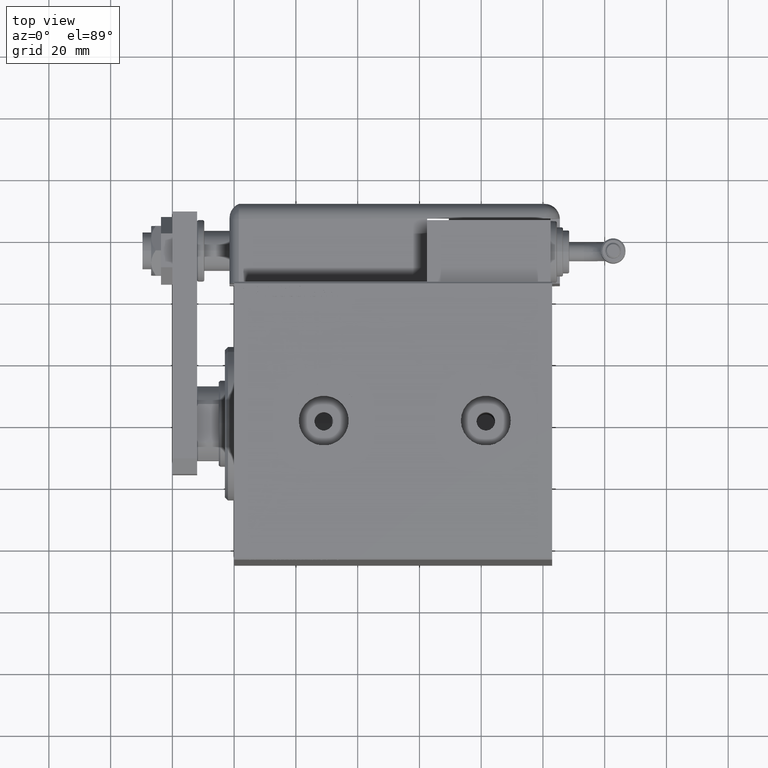
[diagram: clean part render]
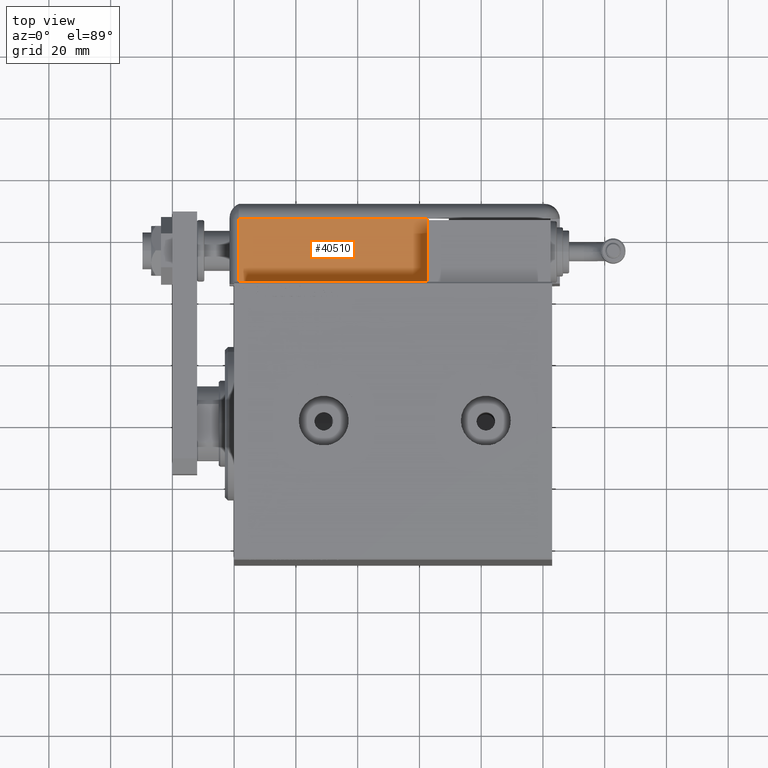
[diagram: same view with one face highlighted and labeled with its STEP entity id]
A machine part, top view. The second image highlights one B-rep face of the part: STEP entity #40510.
In plain terms, the highlighted planar face has unit normal (-0, -0, -1).
Its self-contained STEP definition (entity closure, byte-faithful):
#1228 = CARTESIAN_POINT ( 'NONE',  ( 28.99999999999999645, 20.79999999999998650, 43.00000000000000000 ) ) ;
#2502 = LINE ( 'NONE', #50874, #27167 ) ;
#2965 = DIRECTION ( 'NONE',  ( -0.000000000000000000, -0.000000000000000000, 1.000000000000000000 ) ) ;
#3979 = CARTESIAN_POINT ( 'NONE',  ( 28.99999999999999645, 25.79999999999998295, 104.0000000000000000 ) ) ;
#4887 = EDGE_CURVE ( 'NONE', #36231, #31035, #55074, .T. ) ;
#11099 = FACE_OUTER_BOUND ( 'NONE', #42825, .T. ) ;
#11783 = DIRECTION ( 'NONE',  ( -0.000000000000000000, -0.000000000000000000, -1.000000000000000000 ) ) ;
#12670 = DIRECTION ( 'NONE',  ( -0.000000000000000000, 1.000000000000000000, -0.000000000000000000 ) ) ;
#16040 = CARTESIAN_POINT ( 'NONE',  ( 28.99999999999999645, 25.79999999999998295, 104.0000000000000000 ) ) ;
#16204 = ORIENTED_EDGE ( 'NONE', *, *, #54683, .T. ) ;
#18290 = CARTESIAN_POINT ( 'NONE',  ( 28.99999999999999645, 20.79999999999998650, 104.0000000000000000 ) ) ;
#19819 = ORIENTED_EDGE ( 'NONE', *, *, #25583, .F. ) ;
#21960 = LINE ( 'NONE', #3979, #52962 ) ;
#25049 = DIRECTION ( 'NONE',  ( -1.000000000000000000, 0.000000000000000000, 0.000000000000000000 ) ) ;
#25583 = EDGE_CURVE ( 'NONE', #34413, #31035, #21960, .T. ) ;
#27167 = VECTOR ( 'NONE', #60179, 1000.000000000000000 ) ;
#27598 = VECTOR ( 'NONE', #11783, 1000.000000000000000 ) ;
#29564 = VECTOR ( 'NONE', #2965, 1000.000000000000000 ) ;
#30009 = DIRECTION ( 'NONE',  ( 0.000000000000000000, 0.000000000000000000, 1.000000000000000000 ) ) ;
#31035 = VERTEX_POINT ( 'NONE', #18290 ) ;
#34413 = VERTEX_POINT ( 'NONE', #41388 ) ;
#36099 = EDGE_CURVE ( 'NONE', #36231, #52119, #2502, .T. ) ;
#36144 = CARTESIAN_POINT ( 'NONE',  ( 28.99999999999999645, 20.79999999999998650, 104.0000000000000000 ) ) ;
#36231 = VERTEX_POINT ( 'NONE', #1228 ) ;
#39319 = PLANE ( 'NONE',  #56944 ) ;
#39714 = ORIENTED_EDGE ( 'NONE', *, *, #4887, .T. ) ;
#40510 = ADVANCED_FACE ( 'NONE', ( #11099 ), #39319, .F. ) ;
#41236 = LINE ( 'NONE', #45278, #27598 ) ;
#41388 = CARTESIAN_POINT ( 'NONE',  ( 28.99999999999999645, -9.421223957302265857E-15, 104.0000000000000000 ) ) ;
#42825 = EDGE_LOOP ( 'NONE', ( #16204, #45112, #39714, #19819 ) ) ;
#45112 = ORIENTED_EDGE ( 'NONE', *, *, #36099, .F. ) ;
#45278 = CARTESIAN_POINT ( 'NONE',  ( 28.99999999999999645, -9.421223957302265857E-15, 104.0000000000000000 ) ) ;
#46387 = CARTESIAN_POINT ( 'NONE',  ( 28.99999999999999645, 0.000000000000000000, 43.00000000000000000 ) ) ;
#50874 = CARTESIAN_POINT ( 'NONE',  ( 28.99999999999999645, 0.000000000000000000, 43.00000000000000000 ) ) ;
#52119 = VERTEX_POINT ( 'NONE', #46387 ) ;
#52962 = VECTOR ( 'NONE', #12670, 1000.000000000000000 ) ;
#54683 = EDGE_CURVE ( 'NONE', #34413, #52119, #41236, .T. ) ;
#55074 = LINE ( 'NONE', #36144, #29564 ) ;
#56944 = AXIS2_PLACEMENT_3D ( 'NONE', #16040, #25049, #30009 ) ;
#60179 = DIRECTION ( 'NONE',  ( -0.000000000000000000, -1.000000000000000000, -0.000000000000000000 ) ) ;